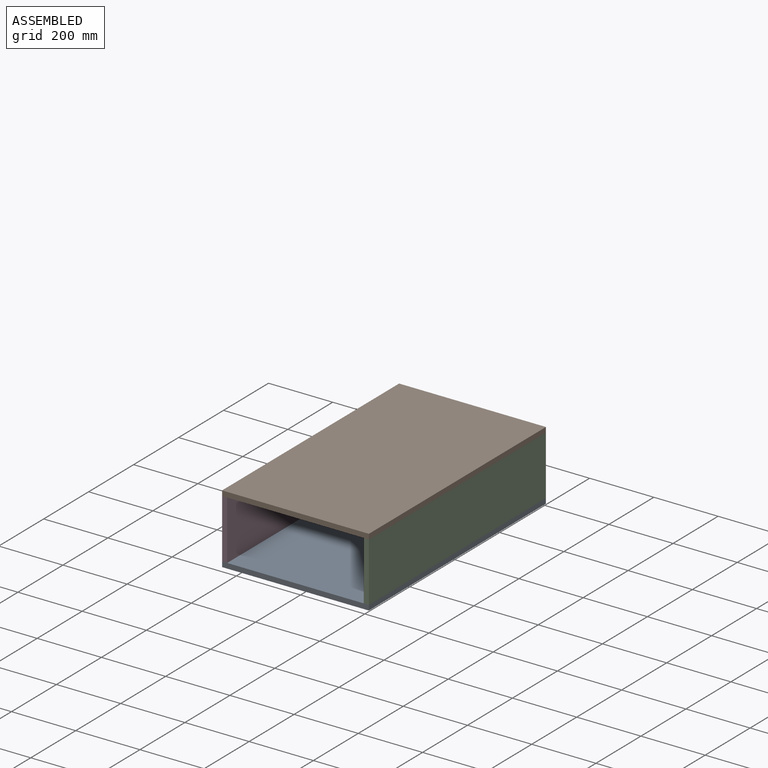
[diagram: assembled view]
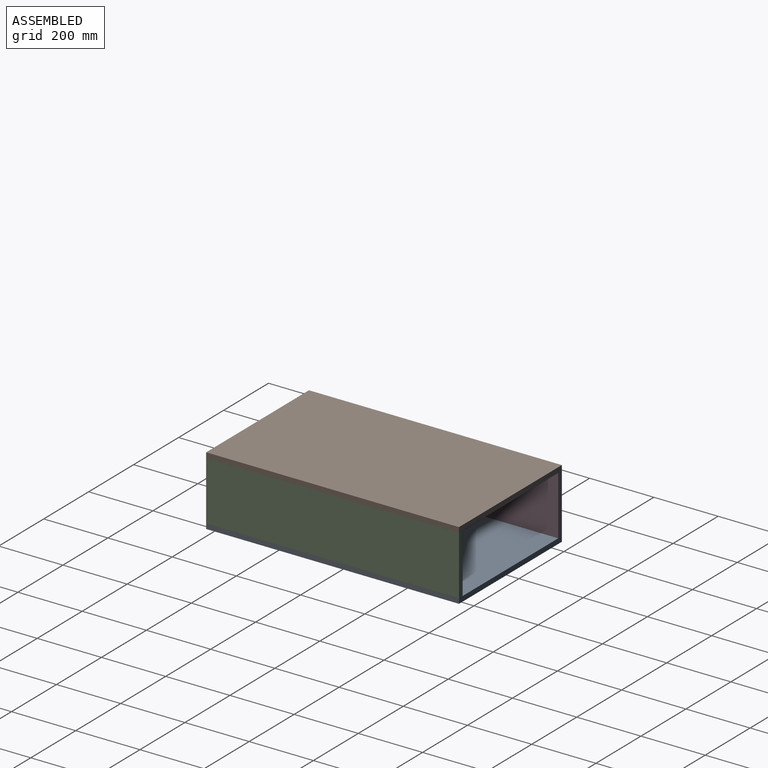
[diagram: assembled view, second angle]
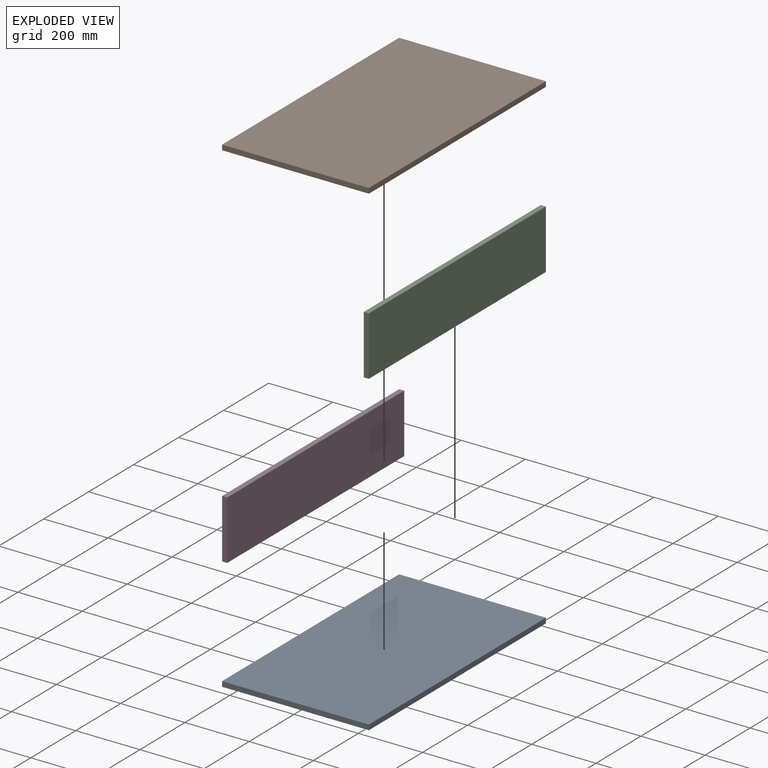
[diagram: exploded view]
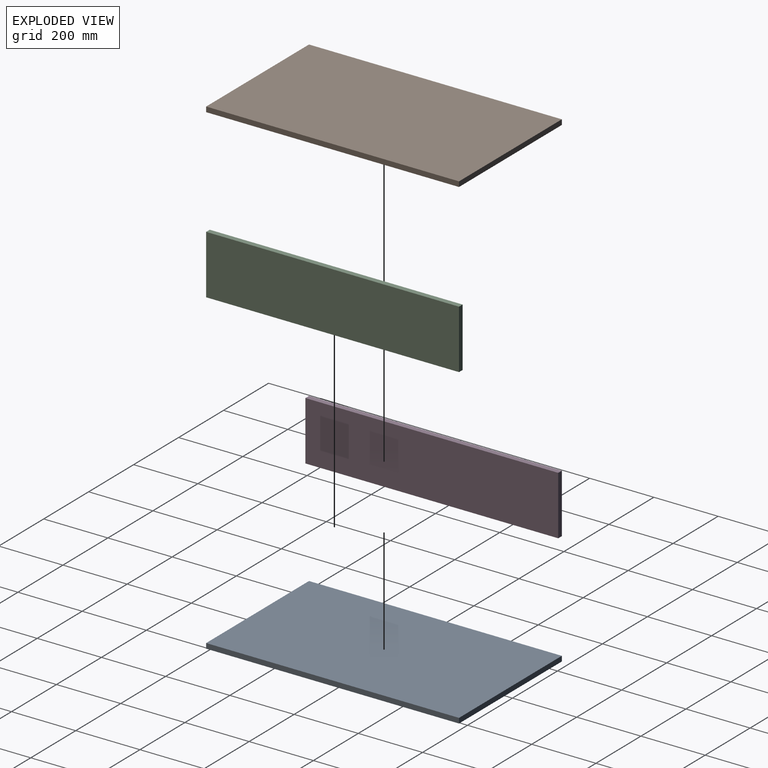
[diagram: exploded view, second angle]
ASSEMBLY  parts=4 mates=2
PART A: 6 faces, bbox 457.2x787.4x15.9 mm
  f0: plane 787.4x457.2mm, normal (0,0,1), area 359999.3mm2, adj f1,f3,f4,f5
  f1: plane 787.4x15.88mm, normal (-1,0,0), area 12500mm2, adj f0,f2,f4,f5
  f2: plane 787.4x457.2mm, normal (0,0,-1), area 359999.3mm2, adj f1,f3,f4,f5
  f3: plane 787.4x15.88mm, normal (1,0,0), area 12500mm2, adj f0,f2,f4,f5
  f4: plane 457.2x15.88mm, normal (0,-1,0), area 7258mm2, adj f0,f1,f2,f3
  f5: plane 457.2x15.88mm, normal (0,1,0), area 7258mm2, adj f0,f1,f2,f3
PART B: same geometry as A
PART C: 6 faces, bbox 15.9x787.4x184.2 mm
  f0: plane 184.15x15.88mm, normal (0,-1,0), area 2923.4mm2, adj f1,f3,f4,f5
  f1: plane 787.4x15.88mm, normal (0,0,-1), area 12500mm2, adj f0,f2,f3,f4
  f2: plane 184.15x15.88mm, normal (0,1,0), area 2923.4mm2, adj f1,f3,f4,f5
  f3: plane 787.4x184.15mm, normal (1,0,0), area 144999.7mm2, adj f0,f1,f2,f5
  f4: plane 787.4x184.15mm, normal (-1,0,0), area 144999.7mm2, adj f0,f1,f2,f5
  f5: plane 787.4x15.88mm, normal (0,0,1), area 12500mm2, adj f0,f2,f3,f4
PART D: same geometry as C
PLACE A at identity fixed
PLACE B t=(0,0,200.02)mm
PLACE C t=(441.33,0,0)mm
PLACE D at identity
MATE fastened B.f2 <-> D.f5  axis (0,0,-1) through (-228.6,-393.7,92.07)mm
MATE fastened A.f0 <-> C.f1  axis (0,0,1) through (228.6,-393.7,-92.07)mm
